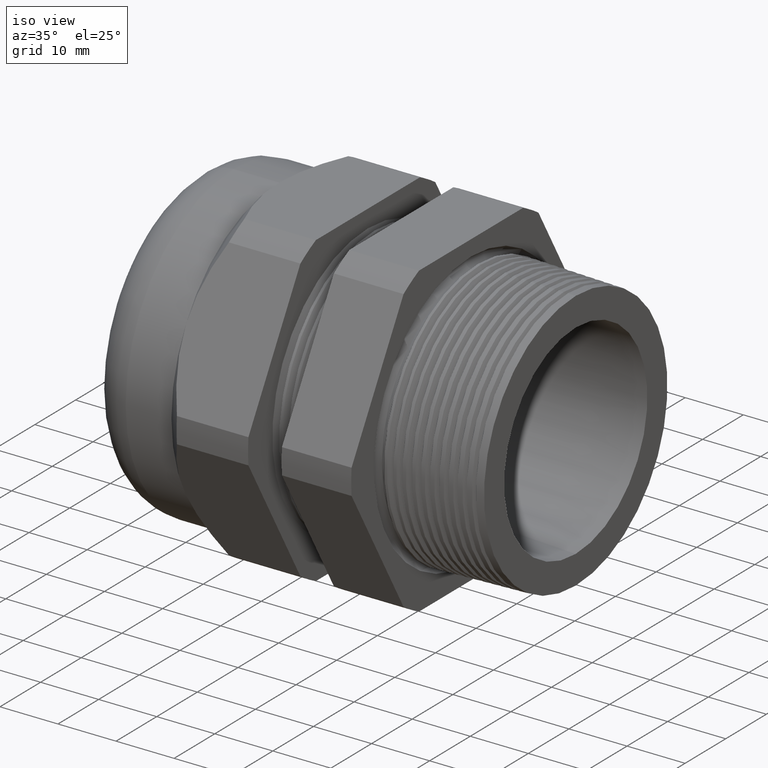
[diagram: clean part render]
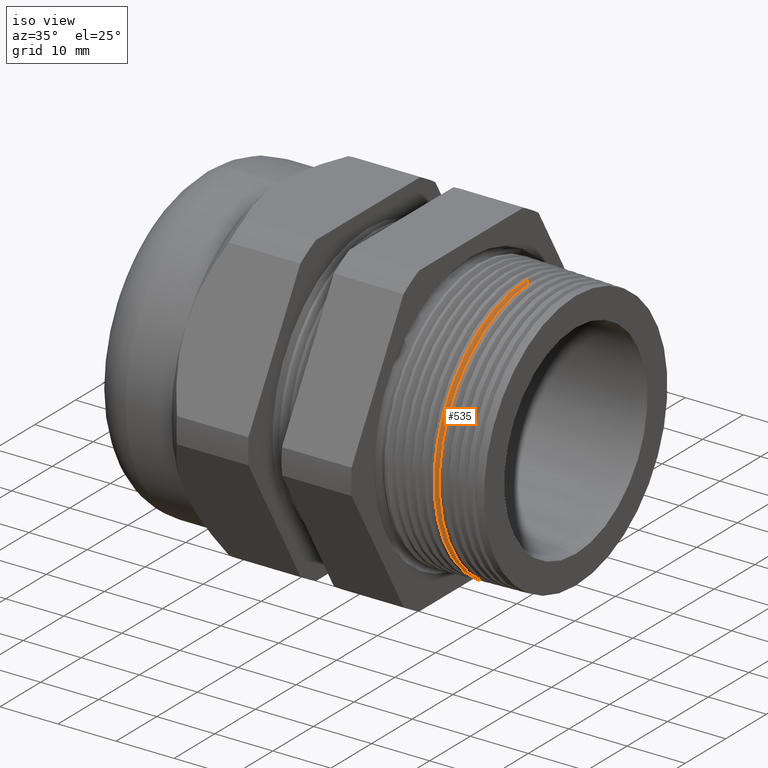
[diagram: same view with one face highlighted and labeled with its STEP entity id]
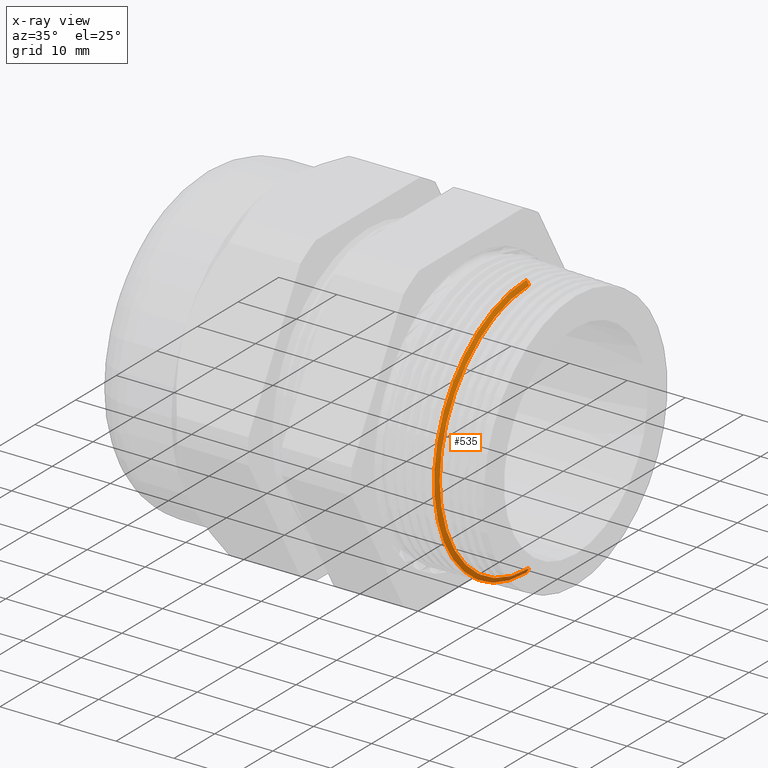
[diagram: x-ray of the same camera — body ghosted, the highlighted face saturated]
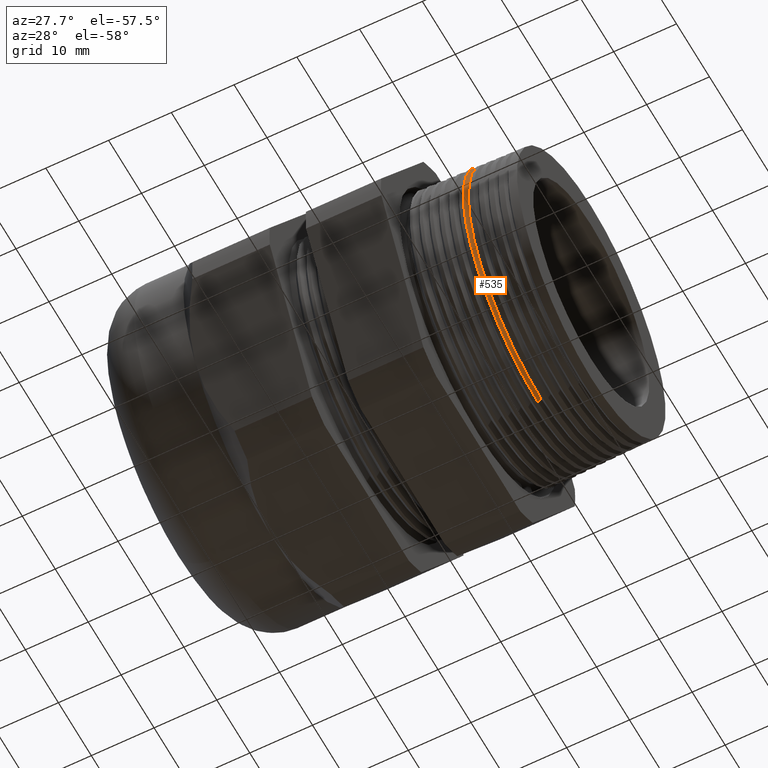
[diagram: same view with one face highlighted and labeled with its STEP entity id]
A machine part, iso view. The second image highlights one B-rep face of the part: STEP entity #535.
The next image is the same camera in x-ray: the body ghosted, the highlighted face saturated — about 5% of this face is hidden behind the body in this view.
A second angle (auxiliary view) of the same face is appended — the face is thin or edge-on in the first view.
In plain terms, the highlighted conical surface has half-angle 61.5 deg.
Its self-contained STEP definition (entity closure, byte-faithful):
#213 = EDGE_CURVE ( 'NONE', #1009, #840, #1613, .T. ) ;
#521 = ORIENTED_EDGE ( 'NONE', *, *, #213, .T. ) ;
#526 = ORIENTED_EDGE ( 'NONE', *, *, #1002, .T. ) ;
#527 = ORIENTED_EDGE ( 'NONE', *, *, #1014, .F. ) ;
#532 = EDGE_CURVE ( 'NONE', #940, #939, #2188, .T. ) ;
#533 = ORIENTED_EDGE ( 'NONE', *, *, #532, .F. ) ;
#534 = EDGE_LOOP ( 'NONE', ( #527, #533, #526, #521 ) ) ;
#535 = ADVANCED_FACE ( 'NONE', ( #2183 ), #2182, .T. ) ;
#840 = VERTEX_POINT ( 'NONE', #2792 ) ;
#939 = VERTEX_POINT ( 'NONE', #2981 ) ;
#940 = VERTEX_POINT ( 'NONE', #2980 ) ;
#1002 = EDGE_CURVE ( 'NONE', #940, #1009, #3116, .T. ) ;
#1009 = VERTEX_POINT ( 'NONE', #3101 ) ;
#1014 = EDGE_CURVE ( 'NONE', #939, #840, #3094, .T. ) ;
#1607 = CARTESIAN_POINT ( 'NONE',  ( 0.06736530265142896800, 0.0000000000000000000, 0.0000000000000000000 ) ) ;
#1608 = AXIS2_PLACEMENT_3D ( 'NONE', #1607, #1668, #1667 ) ;
#1613 = CIRCLE ( 'NONE', #1608, 0.8968025989402770300 ) ;
#1667 = DIRECTION ( 'NONE',  ( 0.0000000000000000000, 0.0000000000000000000, 1.000000000000000000 ) ) ;
#1668 = DIRECTION ( 'NONE',  ( 1.000000000000000000, 0.0000000000000000000, 0.0000000000000000000 ) ) ;
#2177 = DIRECTION ( 'NONE',  ( 0.0000000000000000000, 0.0000000000000000000, 1.000000000000000000 ) ) ;
#2178 = DIRECTION ( 'NONE',  ( -1.000000000000000000, 0.0000000000000000000, 0.0000000000000000000 ) ) ;
#2179 = CARTESIAN_POINT ( 'NONE',  ( 0.06200000000000004800, 0.0000000000000000000, 0.0000000000000000000 ) ) ;
#2180 = AXIS2_PLACEMENT_3D ( 'NONE', #2179, #2178, #2177 ) ;
#2182 = CONICAL_SURFACE ( 'NONE', #2180, 0.9066842571584370300, 1.073377489976515600 ) ;
#2183 = FACE_OUTER_BOUND ( 'NONE', #534, .T. ) ;
#2184 = DIRECTION ( 'NONE',  ( 0.0000000000000000000, 0.0000000000000000000, -1.000000000000000000 ) ) ;
#2185 = DIRECTION ( 'NONE',  ( 1.000000000000000000, 0.0000000000000000000, 0.0000000000000000000 ) ) ;
#2186 = CARTESIAN_POINT ( 'NONE',  ( 0.08403901909456557000, 0.0000000000000000000, 0.0000000000000000000 ) ) ;
#2187 = AXIS2_PLACEMENT_3D ( 'NONE', #2186, #2185, #2184 ) ;
#2188 = CIRCLE ( 'NONE', #2187, 0.8660934334333305600 ) ;
#2792 = CARTESIAN_POINT ( 'NONE',  ( 0.06736530265142896800, 1.098684750488313200E-016, -0.8968025989402770300 ) ) ;
#2980 = CARTESIAN_POINT ( 'NONE',  ( 0.08403901909456557000, 0.0000000000000000000, 0.8660934334333305600 ) ) ;
#2981 = CARTESIAN_POINT ( 'NONE',  ( 0.08403901909456557000, 1.079462491637953700E-016, -0.8660934334333305600 ) ) ;
#3091 = DIRECTION ( 'NONE',  ( -0.4771587602596058500, 1.076240564057396400E-016, -0.8788171126619667200 ) ) ;
#3092 = VECTOR ( 'NONE', #3091, 39.37007874015748100 ) ;
#3093 = CARTESIAN_POINT ( 'NONE',  ( 0.06200000000000004800, 1.110367973366375700E-016, -0.9066842571584370300 ) ) ;
#3094 = LINE ( 'NONE', #3093, #3092 ) ;
#3101 = CARTESIAN_POINT ( 'NONE',  ( 0.06736530265142896800, 0.0000000000000000000, 0.8968025989402770300 ) ) ;
#3113 = DIRECTION ( 'NONE',  ( -0.4771587602596058500, 0.0000000000000000000, 0.8788171126619667200 ) ) ;
#3114 = VECTOR ( 'NONE', #3113, 39.37007874015748100 ) ;
#3115 = CARTESIAN_POINT ( 'NONE',  ( 0.06200000000000004800, 0.0000000000000000000, 0.9066842571584370300 ) ) ;
#3116 = LINE ( 'NONE', #3115, #3114 ) ;